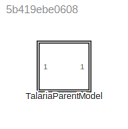
MODEL slx_5b419ebe0608
KIND library
CONFIG AbsTol = auto
CONFIG EnableMultiTasking = off
CONFIG FixedStep = auto
CONFIG MaxStep = auto
CONFIG MinStep = auto
CONFIG RelTol = 1e-3
CONFIG SampleTimeConstraint = Unconstrained
CONFIG SolverName = VariableStepAuto
CONFIG StartTime = 0.0
CONFIG StopTime = 10.0
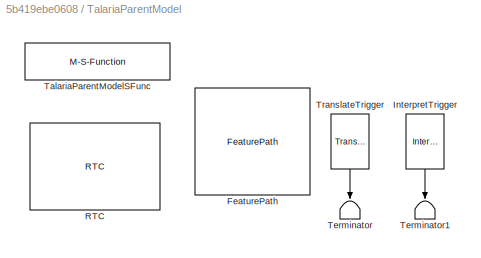
BLOCK [SubSystem] TalariaParentModel
  MoveFcn = TalariaParentModelMask.CB_TriggerInit(gcbh);
  TreatAsAtomicUnit = on
BLOCK [Reference] TalariaParentModel/FeaturePath  REF=FeaturePath/FeaturePath
  SourceBlock = FeaturePath/FeaturePath
  SourceProductName = Bose Talaria
  SourceType = Talaria Feature Path
BLOCK [Reference] TalariaParentModel/InterpretTrigger  REF=StateVar/InterpretTrigger
  NameLocation = left
  SourceBlock = StateVar/InterpretTrigger
  SourceProductName = Bose Talaria
  SourceType = Talaria Interpret Trigger
BLOCK [Reference] TalariaParentModel/RTC  REF=RTC/RTC
  SourceBlock = RTC/RTC
  SourceProductName = Bose Talaria
  SourceType = Talaria RTC Receive
BLOCK [M-S-Function] TalariaParentModel/TalariaParentModelSFunc
  FunctionName = TalariaParentModelSFunc
BLOCK [Terminator] TalariaParentModel/Terminator
  NameLocation = left
BLOCK [Terminator] TalariaParentModel/Terminator1
  NameLocation = left
BLOCK [Reference] TalariaParentModel/TranslateTrigger  REF=TuneVar/TranslateTrigger
  NameLocation = left
  SourceBlock = TuneVar/TranslateTrigger
  SourceProductName = Bose Talaria
  SourceType = Talaria Translate Trigger
LINE TalariaParentModel/InterpretTrigger:1 -> TalariaParentModel/Terminator1:1
LINE TalariaParentModel/TranslateTrigger:1 -> TalariaParentModel/Terminator:1
